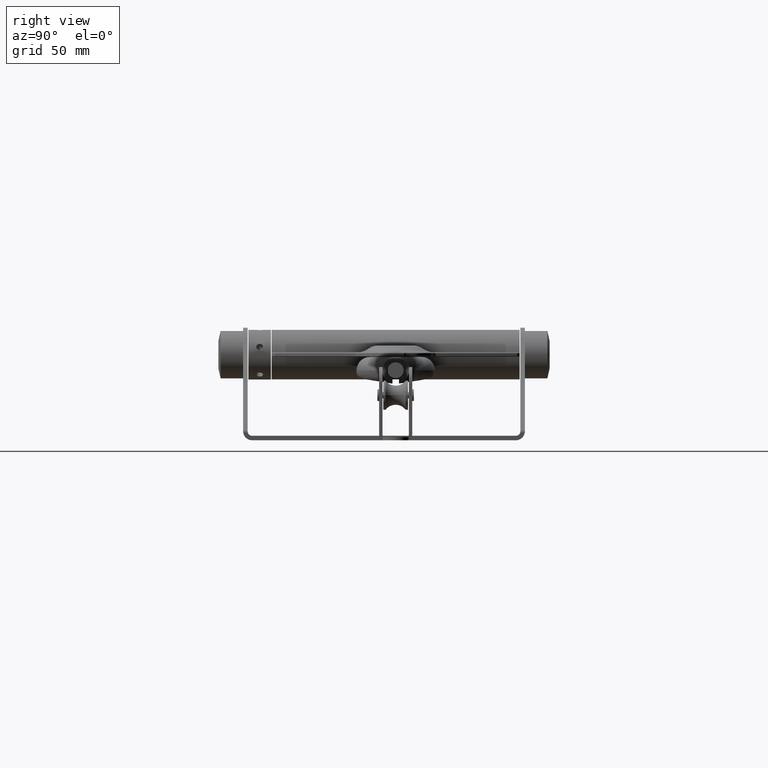
[diagram: clean part render]
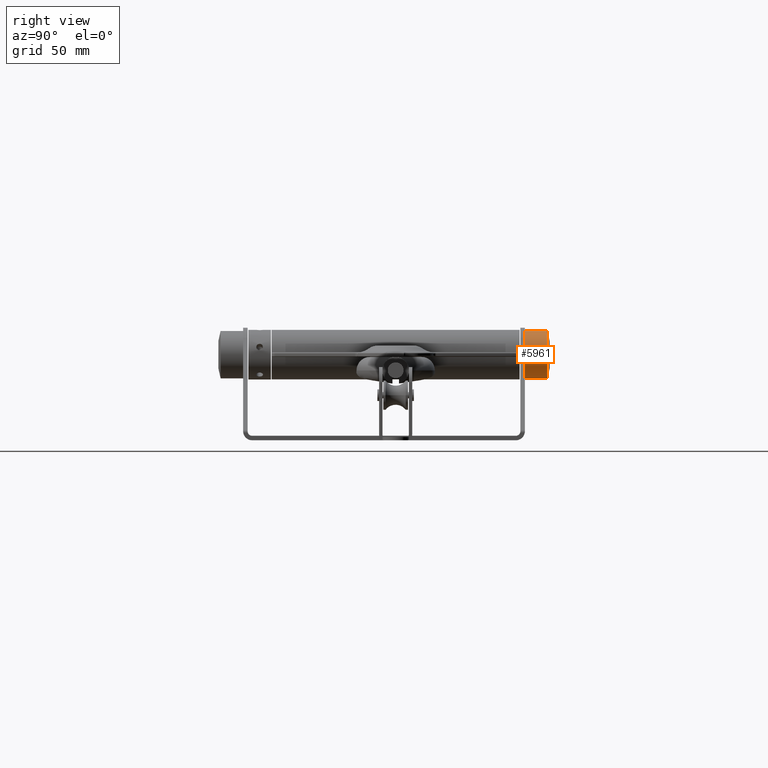
[diagram: same view with one face highlighted and labeled with its STEP entity id]
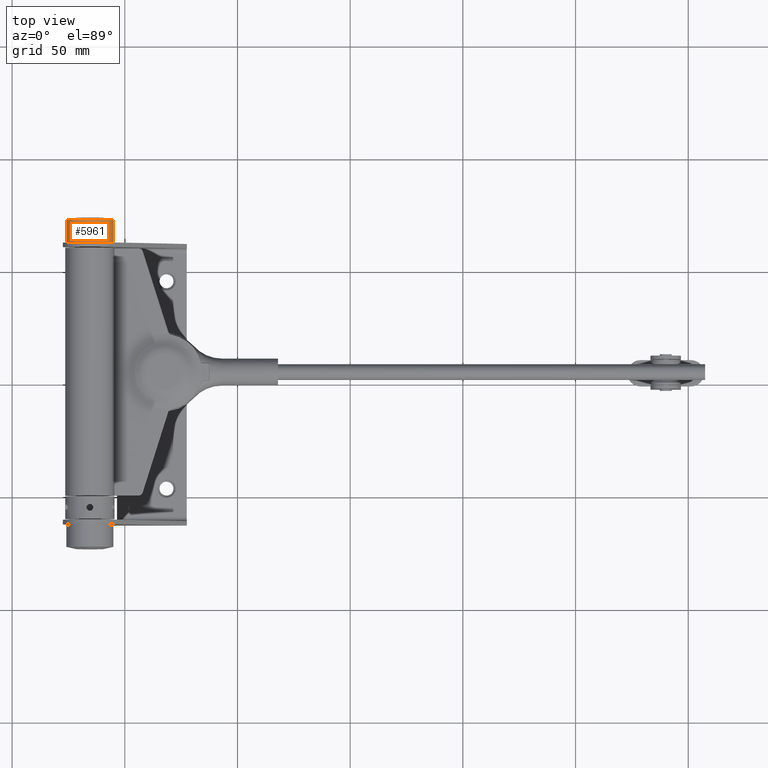
[diagram: same view with one face highlighted and labeled with its STEP entity id]
A machine part, right view. The second image highlights one B-rep face of the part: STEP entity #5961.
A second angle (top view) of the same face is appended — the face is thin or edge-on in the first view.
In plain terms, the highlighted cylindrical surface (bore or boss wall) has radius 10.5 mm, axis along (0, -1, -0).
Its self-contained STEP definition (entity closure, byte-faithful):
#828 = VERTEX_POINT ( 'NONE', #15693 ) ;
#1897 = FACE_OUTER_BOUND ( 'NONE', #15514, .T. ) ;
#4599 = CARTESIAN_POINT ( 'NONE',  ( 0.000000000000000000, 2.155317462218358237E-46, -10.50000000000014033 ) ) ;
#5031 = ORIENTED_EDGE ( 'NONE', *, *, #18727, .F. ) ;
#5164 = EDGE_LOOP ( 'NONE', ( #19701 ) ) ;
#5866 = CIRCLE ( 'NONE', #17620, 10.50000000000013856 ) ;
#5961 = ADVANCED_FACE ( 'NONE', ( #1897, #16099 ), #18683, .T. ) ;
#7415 = DIRECTION ( 'NONE',  ( 0.000000000000000000, 0.000000000000000000, -1.000000000000000000 ) ) ;
#8359 = CARTESIAN_POINT ( 'NONE',  ( 0.000000000000000000, 0.000000000000000000, 0.000000000000000000 ) ) ;
#9331 = DIRECTION ( 'NONE',  ( 0.000000000000000000, -1.000000000000000000, 2.052683297350817681E-47 ) ) ;
#10909 = AXIS2_PLACEMENT_3D ( 'NONE', #8359, #17622, #21083 ) ;
#11828 = CIRCLE ( 'NONE', #12871, 10.50000000000014033 ) ;
#12871 = AXIS2_PLACEMENT_3D ( 'NONE', #18461, #9331, #20294 ) ;
#13180 = EDGE_CURVE ( 'NONE', #828, #828, #5866, .T. ) ;
#14533 = CARTESIAN_POINT ( 'NONE',  ( 0.000000000000000000, 9.999999999999994671, 0.000000000000000000 ) ) ;
#15514 = EDGE_LOOP ( 'NONE', ( #5031 ) ) ;
#15693 = CARTESIAN_POINT ( 'NONE',  ( 0.000000000000000000, 9.999999999999994671, -10.50000000000013856 ) ) ;
#16099 = FACE_OUTER_BOUND ( 'NONE', #5164, .T. ) ;
#17620 = AXIS2_PLACEMENT_3D ( 'NONE', #14533, #20303, #7415 ) ;
#17622 = DIRECTION ( 'NONE',  ( 0.000000000000000000, -1.000000000000000000, 2.052683297350817681E-47 ) ) ;
#18461 = CARTESIAN_POINT ( 'NONE',  ( 0.000000000000000000, 0.000000000000000000, 0.000000000000000000 ) ) ;
#18683 = CYLINDRICAL_SURFACE ( 'NONE', #10909, 10.50000000000013856 ) ;
#18727 = EDGE_CURVE ( 'NONE', #20175, #20175, #11828, .T. ) ;
#19701 = ORIENTED_EDGE ( 'NONE', *, *, #13180, .T. ) ;
#20175 = VERTEX_POINT ( 'NONE', #4599 ) ;
#20294 = DIRECTION ( 'NONE',  ( 0.000000000000000000, 2.052683297350789969E-47, -1.000000000000000000 ) ) ;
#20303 = DIRECTION ( 'NONE',  ( 0.000000000000000000, -1.000000000000000000, 2.052683297350817681E-47 ) ) ;
#21083 = DIRECTION ( 'NONE',  ( 0.000000000000000000, 2.052683297350789969E-47, -1.000000000000000000 ) ) ;